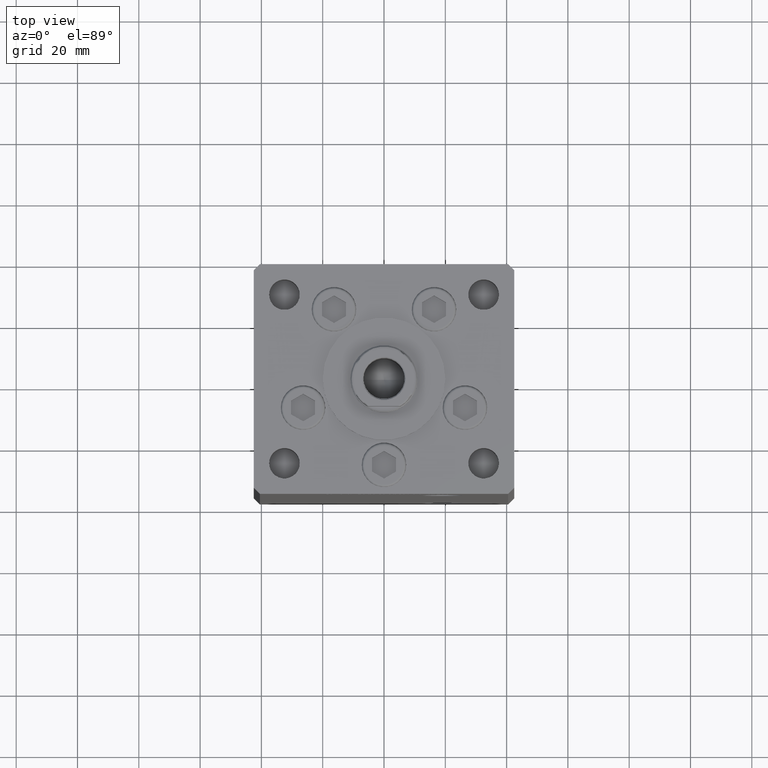
[diagram: clean part render]
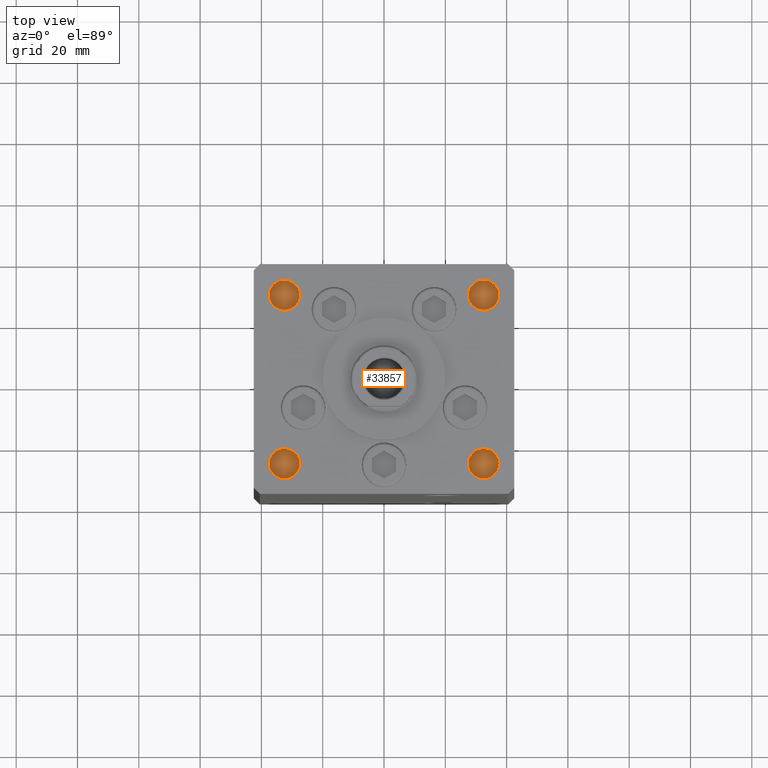
[diagram: same view with one face highlighted and labeled with its STEP entity id]
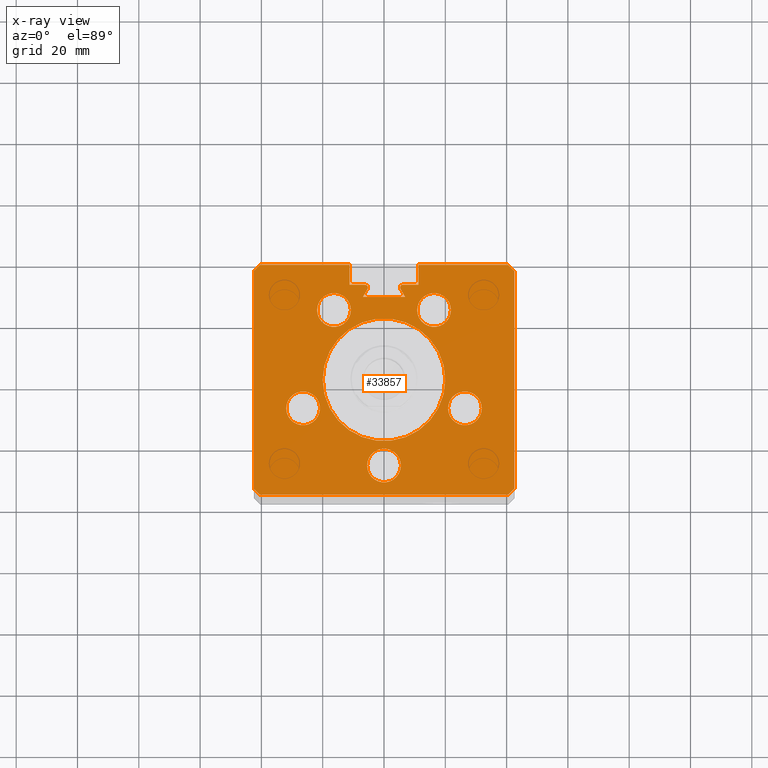
[diagram: x-ray of the same camera — body ghosted, the highlighted face saturated]
A machine part, top view. The second image highlights one B-rep face of the part: STEP entity #33857.
The next image is the same camera in x-ray: the body ghosted, the highlighted face saturated — about 0% of this face is hidden behind the body in this view.
In plain terms, the highlighted planar face has unit normal (0, 0, -1).
Its self-contained STEP definition (entity closure, byte-faithful):
#241 = LINE ( 'NONE', #28536, #3726 ) ;
#363 = VERTEX_POINT ( 'NONE', #13974 ) ;
#695 = EDGE_CURVE ( 'NONE', #33011, #15342, #12042, .T. ) ;
#868 = DIRECTION ( 'NONE',  ( 0.000000000000000000, 0.000000000000000000, 1.000000000000000000 ) ) ;
#1170 = DIRECTION ( 'NONE',  ( 1.000000000000000000, 0.000000000000000000, 0.000000000000000000 ) ) ;
#1177 = EDGE_CURVE ( 'NONE', #15342, #17173, #39224, .T. ) ;
#1221 = DIRECTION ( 'NONE',  ( -0.000000000000000000, 0.000000000000000000, 1.000000000000000000 ) ) ;
#1271 = EDGE_CURVE ( 'NONE', #5226, #39875, #30792, .T. ) ;
#1310 = ORIENTED_EDGE ( 'NONE', *, *, #25272, .F. ) ;
#1455 = EDGE_CURVE ( 'NONE', #45027, #48479, #41745, .T. ) ;
#1785 = CIRCLE ( 'NONE', #31328, 5.499999999999998224 ) ;
#1798 = CARTESIAN_POINT ( 'NONE',  ( -20.89865316429778019, -9.333333333333333925, 168.5000000000000000 ) ) ;
#1918 = DIRECTION ( 'NONE',  ( 1.000000000000000000, 0.000000000000000000, 0.000000000000000000 ) ) ;
#2120 = EDGE_CURVE ( 'NONE', #7715, #29569, #22374, .T. ) ;
#2304 = CARTESIAN_POINT ( 'NONE',  ( 20.89865316429778019, -9.333333333333326820, 168.5000000000000000 ) ) ;
#2391 = CARTESIAN_POINT ( 'NONE',  ( -11.25000000000000000, 37.50000000000000000, 168.5000000000000000 ) ) ;
#2415 = EDGE_CURVE ( 'NONE', #4725, #363, #51868, .T. ) ;
#2493 = VERTEX_POINT ( 'NONE', #49414 ) ;
#2706 = EDGE_CURVE ( 'NONE', #30729, #17801, #11641, .T. ) ;
#2845 = DIRECTION ( 'NONE',  ( 0.000000000000000000, 0.000000000000000000, 1.000000000000000000 ) ) ;
#3112 = VECTOR ( 'NONE', #8004, 1000.000000000000114 ) ;
#3195 = DIRECTION ( 'NONE',  ( 1.000000000000000000, 0.000000000000000000, 0.000000000000000000 ) ) ;
#3688 = VECTOR ( 'NONE', #15624, 1000.000000000000114 ) ;
#3726 = VECTOR ( 'NONE', #4205, 1000.000000000000000 ) ;
#3905 = VERTEX_POINT ( 'NONE', #38184 ) ;
#3953 = CIRCLE ( 'NONE', #35174, 20.00000000000000000 ) ;
#4151 = CARTESIAN_POINT ( 'NONE',  ( 11.25000000000000000, 0.000000000000000000, 168.5000000000000000 ) ) ;
#4205 = DIRECTION ( 'NONE',  ( -1.000000000000000000, 0.000000000000000000, 0.000000000000000000 ) ) ;
#4362 = CARTESIAN_POINT ( 'NONE',  ( -16.32291334290543361, 22.75000000000000000, 168.5000000000000000 ) ) ;
#4725 = VERTEX_POINT ( 'NONE', #44394 ) ;
#4751 = EDGE_CURVE ( 'NONE', #29960, #28706, #41014, .T. ) ;
#4820 = CARTESIAN_POINT ( 'NONE',  ( 3.429011037612589276E-15, -28.00000000000000000, 168.5000000000000000 ) ) ;
#4918 = DIRECTION ( 'NONE',  ( -1.000000000000000000, 0.000000000000000000, 0.000000000000000000 ) ) ;
#5061 = VERTEX_POINT ( 'NONE', #44600 ) ;
#5165 = CARTESIAN_POINT ( 'NONE',  ( 0.000000000000000000, 30.99999999999999289, 168.5000000000000000 ) ) ;
#5226 = VERTEX_POINT ( 'NONE', #2304 ) ;
#5256 = VERTEX_POINT ( 'NONE', #50852 ) ;
#5656 = CARTESIAN_POINT ( 'NONE',  ( 26.39865316429777664, -9.333333333333326820, 168.5000000000000000 ) ) ;
#6447 = LINE ( 'NONE', #31029, #43666 ) ;
#6541 = AXIS2_PLACEMENT_3D ( 'NONE', #19671, #36561, #28397 ) ;
#6566 = CARTESIAN_POINT ( 'NONE',  ( -26.39865316429777664, -9.333333333333333925, 168.5000000000000000 ) ) ;
#7005 = EDGE_CURVE ( 'NONE', #17801, #13018, #48127, .T. ) ;
#7413 = ORIENTED_EDGE ( 'NONE', *, *, #40696, .F. ) ;
#7715 = VERTEX_POINT ( 'NONE', #11995 ) ;
#7948 = DIRECTION ( 'NONE',  ( 1.000000000000000000, 0.000000000000000000, 0.000000000000000000 ) ) ;
#8004 = DIRECTION ( 'NONE',  ( 0.5000000000000003331, -0.8660254037844383745, 0.000000000000000000 ) ) ;
#8516 = EDGE_CURVE ( 'NONE', #50285, #11751, #6447, .T. ) ;
#8520 = DIRECTION ( 'NONE',  ( 2.931927001650941360E-16, -1.000000000000000000, 0.000000000000000000 ) ) ;
#8717 = CARTESIAN_POINT ( 'NONE',  ( 6.183333333333999704, 30.06666666666599141, 168.5000000000000000 ) ) ;
#8729 = ORIENTED_EDGE ( 'NONE', *, *, #36440, .F. ) ;
#8979 = DIRECTION ( 'NONE',  ( 0.000000000000000000, 0.000000000000000000, -1.000000000000000000 ) ) ;
#9036 = VERTEX_POINT ( 'NONE', #23502 ) ;
#9156 = CIRCLE ( 'NONE', #11686, 5.499999999999998224 ) ;
#9199 = CARTESIAN_POINT ( 'NONE',  ( -6.183333333333999704, 30.99999999999999289, 168.5000000000000000 ) ) ;
#9571 = CIRCLE ( 'NONE', #16341, 5.499999999999998224 ) ;
#9768 = DIRECTION ( 'NONE',  ( 0.000000000000000000, 0.000000000000000000, 1.000000000000000000 ) ) ;
#10076 = ORIENTED_EDGE ( 'NONE', *, *, #41266, .F. ) ;
#10164 = DIRECTION ( 'NONE',  ( 1.000000000000000000, 0.000000000000000000, 0.000000000000000000 ) ) ;
#10439 = ORIENTED_EDGE ( 'NONE', *, *, #25594, .T. ) ;
#10705 = EDGE_LOOP ( 'NONE', ( #37508, #26424 ) ) ;
#10758 = CARTESIAN_POINT ( 'NONE',  ( 0.000000000000000000, 0.000000000000000000, 168.5000000000000000 ) ) ;
#10790 = ORIENTED_EDGE ( 'NONE', *, *, #23837, .F. ) ;
#10799 = LINE ( 'NONE', #25882, #24553 ) ;
#11020 = FACE_BOUND ( 'NONE', #15162, .T. ) ;
#11129 = EDGE_CURVE ( 'NONE', #20271, #28958, #29802, .T. ) ;
#11551 = DIRECTION ( 'NONE',  ( 0.000000000000000000, 0.000000000000000000, -1.000000000000000000 ) ) ;
#11606 = AXIS2_PLACEMENT_3D ( 'NONE', #5656, #14645, #10164 ) ;
#11641 = LINE ( 'NONE', #36666, #50199 ) ;
#11658 = CARTESIAN_POINT ( 'NONE',  ( -10.82291334290543539, 22.75000000000000000, 168.5000000000000000 ) ) ;
#11686 = AXIS2_PLACEMENT_3D ( 'NONE', #34609, #9768, #34344 ) ;
#11751 = VERTEX_POINT ( 'NONE', #50750 ) ;
#11939 = LINE ( 'NONE', #24875, #18361 ) ;
#11995 = CARTESIAN_POINT ( 'NONE',  ( -21.82291334290543361, 22.75000000000000000, 168.5000000000000000 ) ) ;
#12042 = LINE ( 'NONE', #52155, #45105 ) ;
#12495 = DIRECTION ( 'NONE',  ( -0.000000000000000000, 0.000000000000000000, 1.000000000000000000 ) ) ;
#12615 = LINE ( 'NONE', #5165, #19771 ) ;
#13018 = VERTEX_POINT ( 'NONE', #2391 ) ;
#13133 = EDGE_LOOP ( 'NONE', ( #46403, #33524 ) ) ;
#13314 = CIRCLE ( 'NONE', #11606, 5.499999999999998224 ) ;
#13497 = CIRCLE ( 'NONE', #43826, 5.500000000000000000 ) ;
#13779 = ORIENTED_EDGE ( 'NONE', *, *, #18954, .F. ) ;
#13974 = CARTESIAN_POINT ( 'NONE',  ( -5.499999999999996447, -28.00000000000000000, 168.5000000000000000 ) ) ;
#14107 = LINE ( 'NONE', #39434, #44371 ) ;
#14371 = DIRECTION ( 'NONE',  ( 1.000000000000000000, 0.000000000000000000, 0.000000000000000000 ) ) ;
#14645 = DIRECTION ( 'NONE',  ( 0.000000000000000000, 0.000000000000000000, 1.000000000000000000 ) ) ;
#15162 = EDGE_LOOP ( 'NONE', ( #21639, #39559 ) ) ;
#15207 = DIRECTION ( 'NONE',  ( 0.7071067811865474617, -0.7071067811865474617, 0.000000000000000000 ) ) ;
#15342 = VERTEX_POINT ( 'NONE', #21806 ) ;
#15450 = DIRECTION ( 'NONE',  ( 1.000000000000000000, 0.000000000000000000, 0.000000000000000000 ) ) ;
#15506 = FACE_OUTER_BOUND ( 'NONE', #27735, .T. ) ;
#15624 = DIRECTION ( 'NONE',  ( 0.7071067811865500152, -0.7071067811865451302, 0.000000000000000000 ) ) ;
#15872 = CARTESIAN_POINT ( 'NONE',  ( 16.32291334290542650, 22.75000000000000355, 168.5000000000000000 ) ) ;
#15937 = CARTESIAN_POINT ( 'NONE',  ( 11.24999999999999289, 37.50000000000000000, 168.5000000000000000 ) ) ;
#16021 = EDGE_CURVE ( 'NONE', #31519, #2493, #24236, .T. ) ;
#16341 = AXIS2_PLACEMENT_3D ( 'NONE', #6566, #22702, #19263 ) ;
#16470 = LINE ( 'NONE', #30816, #3112 ) ;
#16713 = EDGE_CURVE ( 'NONE', #44634, #3905, #24391, .T. ) ;
#16872 = VECTOR ( 'NONE', #8520, 1000.000000000000000 ) ;
#16901 = EDGE_LOOP ( 'NONE', ( #8729, #13779 ) ) ;
#16918 = DIRECTION ( 'NONE',  ( 1.000000000000000000, 0.000000000000000000, 0.000000000000000000 ) ) ;
#17015 = DIRECTION ( 'NONE',  ( 0.000000000000000000, 0.000000000000000000, 1.000000000000000000 ) ) ;
#17173 = VERTEX_POINT ( 'NONE', #29954 ) ;
#17801 = VERTEX_POINT ( 'NONE', #29654 ) ;
#17983 = CARTESIAN_POINT ( 'NONE',  ( 10.82291334290543183, 22.75000000000000355, 168.5000000000000000 ) ) ;
#18193 = EDGE_LOOP ( 'NONE', ( #7413, #48853 ) ) ;
#18361 = VECTOR ( 'NONE', #40981, 1000.000000000000114 ) ;
#18470 = VECTOR ( 'NONE', #21874, 1000.000000000000000 ) ;
#18954 = EDGE_CURVE ( 'NONE', #5061, #44236, #9571, .T. ) ;
#19225 = PLANE ( 'NONE',  #42739 ) ;
#19263 = DIRECTION ( 'NONE',  ( 1.000000000000000000, 0.000000000000000000, 0.000000000000000000 ) ) ;
#19671 = CARTESIAN_POINT ( 'NONE',  ( -26.39865316429777664, -9.333333333333333925, 168.5000000000000000 ) ) ;
#19771 = VECTOR ( 'NONE', #4918, 1000.000000000000000 ) ;
#19810 = CARTESIAN_POINT ( 'NONE',  ( 21.82291334290542650, 22.75000000000000355, 168.5000000000000000 ) ) ;
#19886 = LINE ( 'NONE', #23581, #16872 ) ;
#19946 = AXIS2_PLACEMENT_3D ( 'NONE', #44917, #44126, #7948 ) ;
#20030 = VECTOR ( 'NONE', #24405, 1000.000000000000000 ) ;
#20271 = VERTEX_POINT ( 'NONE', #24451 ) ;
#20494 = DIRECTION ( 'NONE',  ( 0.000000000000000000, 0.000000000000000000, 1.000000000000000000 ) ) ;
#20608 = ORIENTED_EDGE ( 'NONE', *, *, #39132, .T. ) ;
#20765 = DIRECTION ( 'NONE',  ( 1.000000000000000000, 0.000000000000000000, 0.000000000000000000 ) ) ;
#20908 = ORIENTED_EDGE ( 'NONE', *, *, #2706, .T. ) ;
#21057 = CIRCLE ( 'NONE', #40453, 5.500000000000000000 ) ;
#21639 = ORIENTED_EDGE ( 'NONE', *, *, #45994, .F. ) ;
#21806 = CARTESIAN_POINT ( 'NONE',  ( -40.49999999999998579, -37.50000000000000711, 168.5000000000000000 ) ) ;
#21815 = EDGE_CURVE ( 'NONE', #30729, #29960, #44107, .T. ) ;
#21874 = DIRECTION ( 'NONE',  ( -2.931927001650941360E-16, -1.000000000000000000, 0.000000000000000000 ) ) ;
#22126 = CARTESIAN_POINT ( 'NONE',  ( -11.25000000000000000, 37.50000000000000000, 168.5000000000000000 ) ) ;
#22374 = CIRCLE ( 'NONE', #24919, 5.500000000000000000 ) ;
#22583 = CIRCLE ( 'NONE', #6541, 5.499999999999998224 ) ;
#22671 = ORIENTED_EDGE ( 'NONE', *, *, #50276, .T. ) ;
#22702 = DIRECTION ( 'NONE',  ( 0.000000000000000000, 0.000000000000000000, 1.000000000000000000 ) ) ;
#23171 = FACE_BOUND ( 'NONE', #16901, .T. ) ;
#23386 = CARTESIAN_POINT ( 'NONE',  ( -40.49999999999998579, -37.50000000000000711, 168.5000000000000000 ) ) ;
#23502 = CARTESIAN_POINT ( 'NONE',  ( 6.876153656360465938, 26.99999999999986855, 168.5000000000000000 ) ) ;
#23581 = CARTESIAN_POINT ( 'NONE',  ( -42.50000000000000711, 35.50000000000001421, 168.5000000000000000 ) ) ;
#23837 = EDGE_CURVE ( 'NONE', #50285, #13018, #50607, .T. ) ;
#23985 = ORIENTED_EDGE ( 'NONE', *, *, #26075, .T. ) ;
#24123 = CARTESIAN_POINT ( 'NONE',  ( -6.876153656360465938, 26.99999999999986855, 168.5000000000000000 ) ) ;
#24236 = LINE ( 'NONE', #4151, #48780 ) ;
#24391 = CIRCLE ( 'NONE', #38692, 20.00000000000000000 ) ;
#24405 = DIRECTION ( 'NONE',  ( 0.000000000000000000, 1.000000000000000000, 0.000000000000000000 ) ) ;
#24451 = CARTESIAN_POINT ( 'NONE',  ( 42.50000000000000711, 35.50000000000001421, 168.5000000000000000 ) ) ;
#24553 = VECTOR ( 'NONE', #37771, 1000.000000000000114 ) ;
#24781 = VECTOR ( 'NONE', #42707, 1000.000000000000000 ) ;
#24875 = CARTESIAN_POINT ( 'NONE',  ( 42.49999999999998579, -35.50000000000000711, 168.5000000000000000 ) ) ;
#24919 = AXIS2_PLACEMENT_3D ( 'NONE', #4362, #20494, #20765 ) ;
#25272 = EDGE_CURVE ( 'NONE', #5256, #20271, #39912, .T. ) ;
#25536 = CARTESIAN_POINT ( 'NONE',  ( -6.183333333333999704, 30.06666666666599141, 168.5000000000000000 ) ) ;
#25594 = EDGE_CURVE ( 'NONE', #9036, #31515, #241, .T. ) ;
#25731 = AXIS2_PLACEMENT_3D ( 'NONE', #8717, #8979, #16918 ) ;
#25768 = CARTESIAN_POINT ( 'NONE',  ( 5.375042956467944499, 29.59999999999898890, 168.5000000000000000 ) ) ;
#25882 = CARTESIAN_POINT ( 'NONE',  ( -16.84845819336021577, 9.727461873366685552, 168.5000000000000000 ) ) ;
#26075 = EDGE_CURVE ( 'NONE', #2493, #48479, #12615, .T. ) ;
#26424 = ORIENTED_EDGE ( 'NONE', *, *, #43080, .F. ) ;
#26663 = CARTESIAN_POINT ( 'NONE',  ( -40.50000000000000000, 37.50000000000000711, 168.5000000000000000 ) ) ;
#26980 = DIRECTION ( 'NONE',  ( -1.000000000000000000, 0.000000000000000000, 0.000000000000000000 ) ) ;
#27407 = FACE_BOUND ( 'NONE', #10705, .T. ) ;
#27680 = DIRECTION ( 'NONE',  ( -1.000000000000000000, 0.000000000000000000, -0.000000000000000000 ) ) ;
#27735 = EDGE_LOOP ( 'NONE', ( #20908, #38518, #10790, #36645, #42730, #28160, #30669, #10076, #41701, #1310, #27768, #28717, #23985, #36394, #20608, #10439, #22671, #33030, #32956 ) ) ;
#27768 = ORIENTED_EDGE ( 'NONE', *, *, #31311, .F. ) ;
#27777 = ORIENTED_EDGE ( 'NONE', *, *, #34029, .F. ) ;
#28160 = ORIENTED_EDGE ( 'NONE', *, *, #695, .T. ) ;
#28397 = DIRECTION ( 'NONE',  ( 1.000000000000000000, 0.000000000000000000, 0.000000000000000000 ) ) ;
#28536 = CARTESIAN_POINT ( 'NONE',  ( 0.000000000000000000, 26.99999999999986855, 168.5000000000000000 ) ) ;
#28706 = VERTEX_POINT ( 'NONE', #44651 ) ;
#28717 = ORIENTED_EDGE ( 'NONE', *, *, #16021, .T. ) ;
#28940 = CARTESIAN_POINT ( 'NONE',  ( 26.39865316429777664, -9.333333333333326820, 168.5000000000000000 ) ) ;
#28958 = VERTEX_POINT ( 'NONE', #35297 ) ;
#29569 = VERTEX_POINT ( 'NONE', #11658 ) ;
#29654 = CARTESIAN_POINT ( 'NONE',  ( -11.25000000000000000, 30.99999999999999289, 168.5000000000000000 ) ) ;
#29802 = LINE ( 'NONE', #41927, #18470 ) ;
#29954 = CARTESIAN_POINT ( 'NONE',  ( 40.49999999999998579, -37.50000000000000711, 168.5000000000000000 ) ) ;
#29960 = VERTEX_POINT ( 'NONE', #37442 ) ;
#30669 = ORIENTED_EDGE ( 'NONE', *, *, #1177, .T. ) ;
#30729 = VERTEX_POINT ( 'NONE', #9199 ) ;
#30792 = CIRCLE ( 'NONE', #37540, 5.499999999999998224 ) ;
#30816 = CARTESIAN_POINT ( 'NONE',  ( 16.84845819336021577, 9.727461873366685552, 168.5000000000000000 ) ) ;
#31029 = CARTESIAN_POINT ( 'NONE',  ( -40.50000000000000000, 37.50000000000000711, 168.5000000000000000 ) ) ;
#31112 = FACE_BOUND ( 'NONE', #13133, .T. ) ;
#31311 = EDGE_CURVE ( 'NONE', #31519, #5256, #14107, .T. ) ;
#31328 = AXIS2_PLACEMENT_3D ( 'NONE', #15872, #47275, #3195 ) ;
#31371 = FACE_BOUND ( 'NONE', #44019, .T. ) ;
#31455 = AXIS2_PLACEMENT_3D ( 'NONE', #25536, #37944, #50580 ) ;
#31515 = VERTEX_POINT ( 'NONE', #24123 ) ;
#31519 = VERTEX_POINT ( 'NONE', #15937 ) ;
#32021 = CARTESIAN_POINT ( 'NONE',  ( 40.50000000000000000, 37.50000000000000711, 168.5000000000000000 ) ) ;
#32480 = ORIENTED_EDGE ( 'NONE', *, *, #16713, .F. ) ;
#32592 = CARTESIAN_POINT ( 'NONE',  ( -11.25000000000000000, 0.000000000000000000, 168.5000000000000000 ) ) ;
#32956 = ORIENTED_EDGE ( 'NONE', *, *, #21815, .F. ) ;
#33011 = VERTEX_POINT ( 'NONE', #35036 ) ;
#33030 = ORIENTED_EDGE ( 'NONE', *, *, #4751, .F. ) ;
#33524 = ORIENTED_EDGE ( 'NONE', *, *, #47896, .F. ) ;
#33639 = CARTESIAN_POINT ( 'NONE',  ( 3.429011037612589276E-15, -28.00000000000000000, 168.5000000000000000 ) ) ;
#33857 = ADVANCED_FACE ( 'NONE', ( #23171, #31112, #47181, #27407, #11020, #15506, #31371 ), #19225, .F. ) ;
#34029 = EDGE_CURVE ( 'NONE', #3905, #44634, #3953, .T. ) ;
#34344 = DIRECTION ( 'NONE',  ( 1.000000000000000000, 0.000000000000000000, 0.000000000000000000 ) ) ;
#34609 = CARTESIAN_POINT ( 'NONE',  ( 16.32291334290542650, 22.75000000000000355, 168.5000000000000000 ) ) ;
#35036 = CARTESIAN_POINT ( 'NONE',  ( -42.49999999999998579, -35.50000000000000711, 168.5000000000000000 ) ) ;
#35174 = AXIS2_PLACEMENT_3D ( 'NONE', #42133, #1221, #50552 ) ;
#35297 = CARTESIAN_POINT ( 'NONE',  ( 42.49999999999998579, -35.50000000000000711, 168.5000000000000000 ) ) ;
#35973 = CARTESIAN_POINT ( 'NONE',  ( -20.00000000000000000, 0.000000000000000000, 168.5000000000000000 ) ) ;
#36394 = ORIENTED_EDGE ( 'NONE', *, *, #1455, .F. ) ;
#36440 = EDGE_CURVE ( 'NONE', #44236, #5061, #22583, .T. ) ;
#36515 = DIRECTION ( 'NONE',  ( 1.000000000000000000, 0.000000000000000000, 0.000000000000000000 ) ) ;
#36561 = DIRECTION ( 'NONE',  ( 0.000000000000000000, 0.000000000000000000, 1.000000000000000000 ) ) ;
#36645 = ORIENTED_EDGE ( 'NONE', *, *, #8516, .T. ) ;
#36666 = CARTESIAN_POINT ( 'NONE',  ( 0.000000000000000000, 30.99999999999999289, 168.5000000000000000 ) ) ;
#37442 = CARTESIAN_POINT ( 'NONE',  ( -5.249999999999997335, 30.06666666666599141, 168.5000000000000000 ) ) ;
#37508 = ORIENTED_EDGE ( 'NONE', *, *, #51943, .F. ) ;
#37540 = AXIS2_PLACEMENT_3D ( 'NONE', #28940, #45011, #1170 ) ;
#37771 = DIRECTION ( 'NONE',  ( 0.5000000000000003331, 0.8660254037844383745, 0.000000000000000000 ) ) ;
#37944 = DIRECTION ( 'NONE',  ( 0.000000000000000000, 0.000000000000000000, -1.000000000000000000 ) ) ;
#38184 = CARTESIAN_POINT ( 'NONE',  ( 20.00000000000000000, 2.449293598294706513E-15, 168.5000000000000000 ) ) ;
#38514 = CARTESIAN_POINT ( 'NONE',  ( -16.32291334290543361, 22.75000000000000000, 168.5000000000000000 ) ) ;
#38518 = ORIENTED_EDGE ( 'NONE', *, *, #7005, .T. ) ;
#38692 = AXIS2_PLACEMENT_3D ( 'NONE', #45204, #12495, #36515 ) ;
#38938 = DIRECTION ( 'NONE',  ( -0.7071067811865500152, -0.7071067811865451302, 0.000000000000000000 ) ) ;
#39132 = EDGE_CURVE ( 'NONE', #45027, #9036, #16470, .T. ) ;
#39224 = LINE ( 'NONE', #23386, #51826 ) ;
#39434 = CARTESIAN_POINT ( 'NONE',  ( -11.25000000000000000, 37.50000000000000000, 168.5000000000000000 ) ) ;
#39559 = ORIENTED_EDGE ( 'NONE', *, *, #2120, .F. ) ;
#39875 = VERTEX_POINT ( 'NONE', #43463 ) ;
#39912 = LINE ( 'NONE', #32021, #3688 ) ;
#40453 = AXIS2_PLACEMENT_3D ( 'NONE', #38514, #2845, #42986 ) ;
#40696 = EDGE_CURVE ( 'NONE', #39875, #5226, #13314, .T. ) ;
#40981 = DIRECTION ( 'NONE',  ( -0.7071067811865474617, -0.7071067811865474617, 0.000000000000000000 ) ) ;
#41014 = CIRCLE ( 'NONE', #19946, 0.9333333333340015914 ) ;
#41266 = EDGE_CURVE ( 'NONE', #28958, #17173, #11939, .T. ) ;
#41701 = ORIENTED_EDGE ( 'NONE', *, *, #11129, .F. ) ;
#41745 = CIRCLE ( 'NONE', #25731, 0.9333333333340015914 ) ;
#41927 = CARTESIAN_POINT ( 'NONE',  ( 42.50000000000000711, 35.50000000000001421, 168.5000000000000000 ) ) ;
#42133 = CARTESIAN_POINT ( 'NONE',  ( 0.000000000000000000, 0.000000000000000000, 168.5000000000000000 ) ) ;
#42609 = AXIS2_PLACEMENT_3D ( 'NONE', #4820, #868, #48372 ) ;
#42707 = DIRECTION ( 'NONE',  ( 1.000000000000000000, 0.000000000000000000, 0.000000000000000000 ) ) ;
#42730 = ORIENTED_EDGE ( 'NONE', *, *, #45559, .T. ) ;
#42739 = AXIS2_PLACEMENT_3D ( 'NONE', #10758, #11551, #27680 ) ;
#42986 = DIRECTION ( 'NONE',  ( 1.000000000000000000, 0.000000000000000000, 0.000000000000000000 ) ) ;
#43080 = EDGE_CURVE ( 'NONE', #45673, #44944, #9156, .T. ) ;
#43463 = CARTESIAN_POINT ( 'NONE',  ( 31.89865316429777664, -9.333333333333326820, 168.5000000000000000 ) ) ;
#43666 = VECTOR ( 'NONE', #38938, 1000.000000000000114 ) ;
#43826 = AXIS2_PLACEMENT_3D ( 'NONE', #33639, #17015, #1918 ) ;
#44019 = EDGE_LOOP ( 'NONE', ( #32480, #27777 ) ) ;
#44107 = CIRCLE ( 'NONE', #31455, 0.9333333333340015914 ) ;
#44126 = DIRECTION ( 'NONE',  ( 0.000000000000000000, 0.000000000000000000, -1.000000000000000000 ) ) ;
#44236 = VERTEX_POINT ( 'NONE', #1798 ) ;
#44371 = VECTOR ( 'NONE', #14371, 1000.000000000000000 ) ;
#44394 = CARTESIAN_POINT ( 'NONE',  ( 5.500000000000003553, -28.00000000000000000, 168.5000000000000000 ) ) ;
#44600 = CARTESIAN_POINT ( 'NONE',  ( -31.89865316429777664, -9.333333333333333925, 168.5000000000000000 ) ) ;
#44634 = VERTEX_POINT ( 'NONE', #35973 ) ;
#44651 = CARTESIAN_POINT ( 'NONE',  ( -5.375042956467944499, 29.59999999999898890, 168.5000000000000000 ) ) ;
#44917 = CARTESIAN_POINT ( 'NONE',  ( -6.183333333333999704, 30.06666666666599141, 168.5000000000000000 ) ) ;
#44944 = VERTEX_POINT ( 'NONE', #19810 ) ;
#45011 = DIRECTION ( 'NONE',  ( 0.000000000000000000, 0.000000000000000000, 1.000000000000000000 ) ) ;
#45027 = VERTEX_POINT ( 'NONE', #25768 ) ;
#45105 = VECTOR ( 'NONE', #15207, 1000.000000000000114 ) ;
#45204 = CARTESIAN_POINT ( 'NONE',  ( 0.000000000000000000, 0.000000000000000000, 168.5000000000000000 ) ) ;
#45559 = EDGE_CURVE ( 'NONE', #11751, #33011, #19886, .T. ) ;
#45673 = VERTEX_POINT ( 'NONE', #17983 ) ;
#45994 = EDGE_CURVE ( 'NONE', #29569, #7715, #21057, .T. ) ;
#46403 = ORIENTED_EDGE ( 'NONE', *, *, #2415, .F. ) ;
#47181 = FACE_BOUND ( 'NONE', #18193, .T. ) ;
#47275 = DIRECTION ( 'NONE',  ( 0.000000000000000000, 0.000000000000000000, 1.000000000000000000 ) ) ;
#47896 = EDGE_CURVE ( 'NONE', #363, #4725, #13497, .T. ) ;
#48127 = LINE ( 'NONE', #32592, #20030 ) ;
#48220 = DIRECTION ( 'NONE',  ( -0.000000000000000000, -1.000000000000000000, 0.000000000000000000 ) ) ;
#48372 = DIRECTION ( 'NONE',  ( 1.000000000000000000, 0.000000000000000000, 0.000000000000000000 ) ) ;
#48479 = VERTEX_POINT ( 'NONE', #51127 ) ;
#48780 = VECTOR ( 'NONE', #48220, 1000.000000000000000 ) ;
#48853 = ORIENTED_EDGE ( 'NONE', *, *, #1271, .F. ) ;
#49414 = CARTESIAN_POINT ( 'NONE',  ( 11.25000000000000000, 30.99999999999999289, 168.5000000000000000 ) ) ;
#50199 = VECTOR ( 'NONE', #26980, 1000.000000000000000 ) ;
#50276 = EDGE_CURVE ( 'NONE', #31515, #28706, #10799, .T. ) ;
#50285 = VERTEX_POINT ( 'NONE', #26663 ) ;
#50552 = DIRECTION ( 'NONE',  ( 1.000000000000000000, 0.000000000000000000, 0.000000000000000000 ) ) ;
#50580 = DIRECTION ( 'NONE',  ( 1.000000000000000000, 0.000000000000000000, 0.000000000000000000 ) ) ;
#50607 = LINE ( 'NONE', #22126, #24781 ) ;
#50750 = CARTESIAN_POINT ( 'NONE',  ( -42.50000000000000711, 35.50000000000001421, 168.5000000000000000 ) ) ;
#50852 = CARTESIAN_POINT ( 'NONE',  ( 40.50000000000000000, 37.50000000000000711, 168.5000000000000000 ) ) ;
#51127 = CARTESIAN_POINT ( 'NONE',  ( 6.183333333333999704, 30.99999999999999289, 168.5000000000000000 ) ) ;
#51826 = VECTOR ( 'NONE', #15450, 1000.000000000000000 ) ;
#51868 = CIRCLE ( 'NONE', #42609, 5.500000000000000000 ) ;
#51943 = EDGE_CURVE ( 'NONE', #44944, #45673, #1785, .T. ) ;
#52155 = CARTESIAN_POINT ( 'NONE',  ( -42.49999999999998579, -35.50000000000000711, 168.5000000000000000 ) ) ;